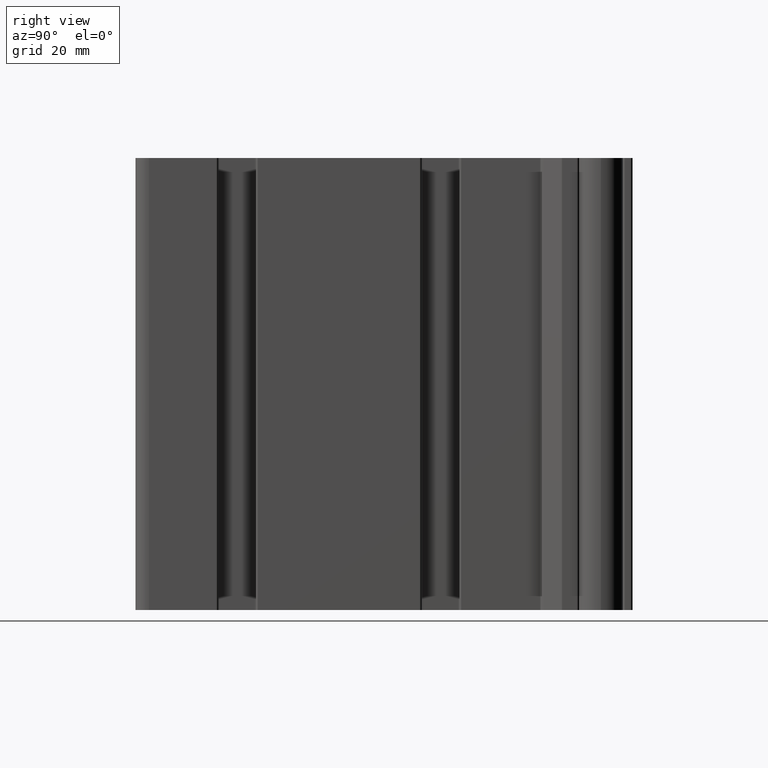
[diagram: clean part render]
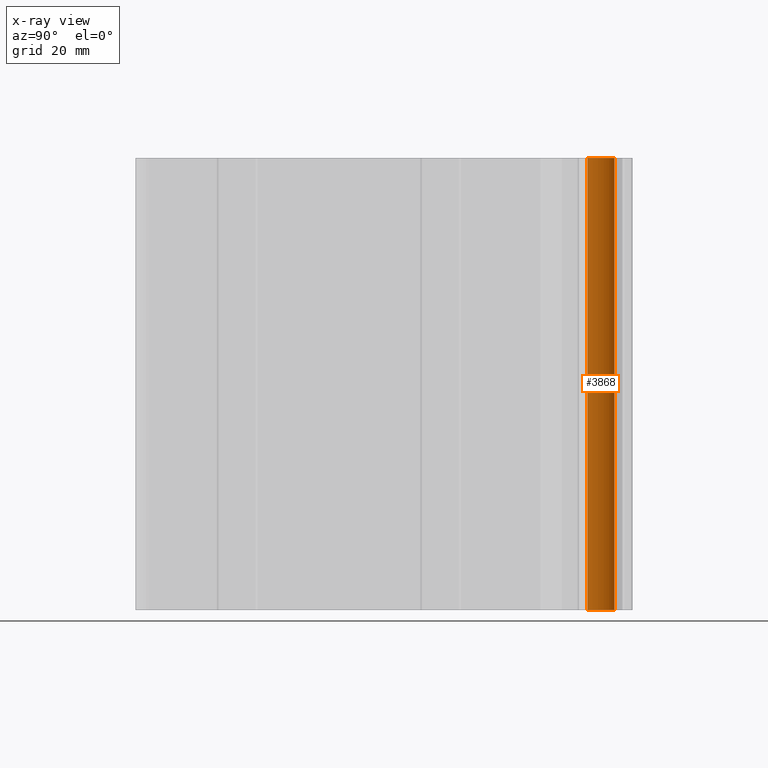
[diagram: x-ray — body ghosted, one internal face saturated and labeled with its STEP entity id]
A machine part, right view, then the same camera in x-ray: the body is ghosted and one INTERNAL B-rep face — a face not visible from any outside direction — is saturated and labeled: STEP entity #3868.
In plain terms, the highlighted cylindrical surface (edge-blend (fillet) strip) has radius 5.55 mm, axis along (0, 0, 1).
Its self-contained STEP definition (entity closure, byte-faithful):
#264=FACE_OUTER_BOUND('',#469,.T.);
#469=EDGE_LOOP('',(#3196,#3197,#3198,#3199));
#634=CIRCLE('',#4136,5.54999999999771);
#730=CIRCLE('',#4333,5.54999999999771);
#1052=LINE('',#6632,#1395);
#1053=LINE('',#6636,#1396);
#1395=VECTOR('',#5402,10.);
#1396=VECTOR('',#5407,10.);
#1644=VERTEX_POINT('',#6128);
#1645=VERTEX_POINT('',#6130);
#1795=VERTEX_POINT('',#6630);
#1796=VERTEX_POINT('',#6634);
#2076=EDGE_CURVE('',#1644,#1645,#634,.T.);
#2327=EDGE_CURVE('',#1795,#1644,#1052,.T.);
#2328=EDGE_CURVE('',#1796,#1795,#730,.T.);
#2329=EDGE_CURVE('',#1796,#1645,#1053,.T.);
#3196=ORIENTED_EDGE('',*,*,#2327,.F.);
#3197=ORIENTED_EDGE('',*,*,#2328,.F.);
#3198=ORIENTED_EDGE('',*,*,#2329,.T.);
#3199=ORIENTED_EDGE('',*,*,#2076,.F.);
#3683=CYLINDRICAL_SURFACE('',#4332,5.54999999999771);
#3868=ADVANCED_FACE('',(#264),#3683,.F.);
#4136=AXIS2_PLACEMENT_3D('',#6131,#4855,#4856);
#4332=AXIS2_PLACEMENT_3D('',#6633,#5403,#5404);
#4333=AXIS2_PLACEMENT_3D('',#6635,#5405,#5406);
#4855=DIRECTION('center_axis',(0.,0.,1.));
#4856=DIRECTION('ref_axis',(0.845295553758291,-0.534299005049105,0.));
#5402=DIRECTION('',(0.,0.,-1.));
#5403=DIRECTION('center_axis',(0.,0.,1.));
#5404=DIRECTION('ref_axis',(0.845295553758291,-0.534299005049105,0.));
#5405=DIRECTION('center_axis',(0.,0.,-1.));
#5406=DIRECTION('ref_axis',(0.845295553758291,-0.534299005049105,0.));
#5407=DIRECTION('',(0.,0.,-1.));
#6128=CARTESIAN_POINT('',(-22.3086031170107,100.034640701859,-50.));
#6130=CARTESIAN_POINT('',(-22.3085980245167,105.965351601231,-50.));
#6131=CARTESIAN_POINT('Origin',(-26.9999934403673,103.00000017988,-50.));
#6630=CARTESIAN_POINT('',(-22.3086031170107,100.034640701859,50.));
#6632=CARTESIAN_POINT('',(-22.3086031170107,100.034640701859,0.));
#6633=CARTESIAN_POINT('Origin',(-26.9999934403673,103.00000017988,0.));
#6634=CARTESIAN_POINT('',(-22.3085980245167,105.965351601231,50.));
#6635=CARTESIAN_POINT('Origin',(-26.9999934403673,103.00000017988,50.));
#6636=CARTESIAN_POINT('',(-22.3085980245167,105.965351601231,0.));